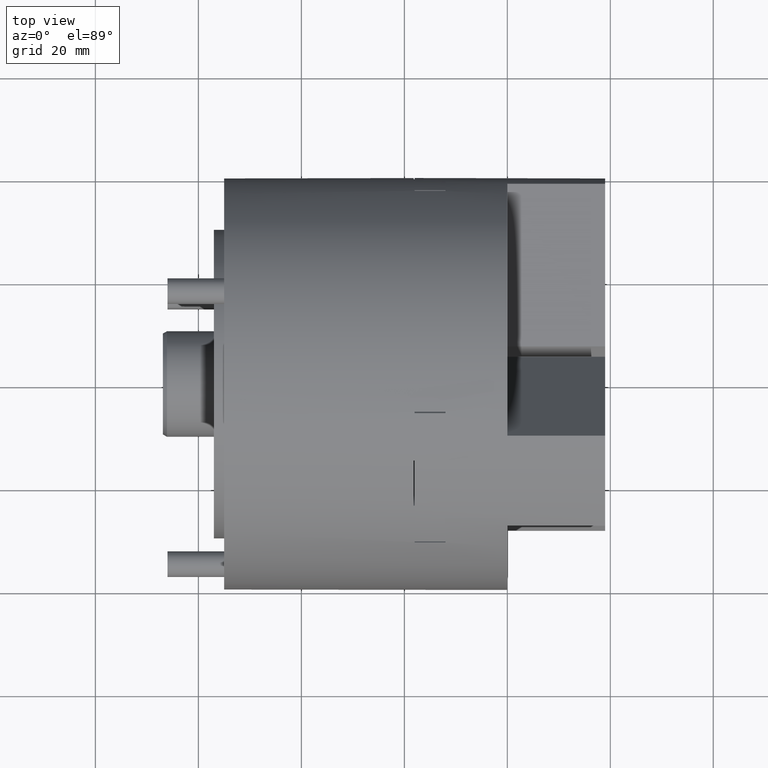
[diagram: clean part render]
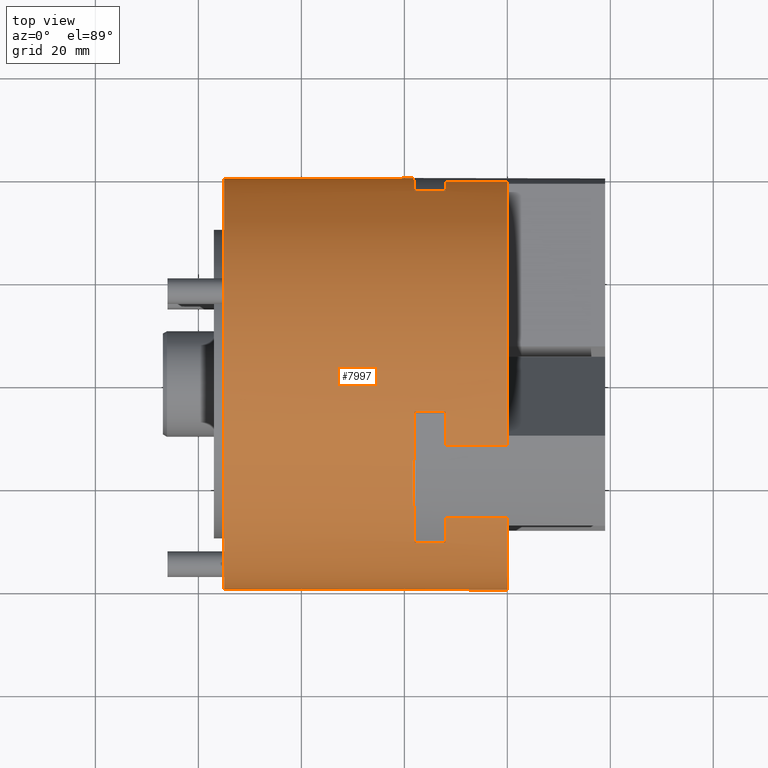
[diagram: same view with one face highlighted and labeled with its STEP entity id]
A machine part, top view. The second image highlights one B-rep face of the part: STEP entity #7997.
In plain terms, the highlighted cylindrical surface (bore or boss wall) has radius 40 mm, axis along (1, 0, 0).
Its self-contained STEP definition (entity closure, byte-faithful):
#135=CYLINDRICAL_SURFACE('',#8744,40.);
#243=CIRCLE('',#8248,40.);
#245=CIRCLE('',#8251,40.);
#372=CIRCLE('',#8612,40.);
#391=CIRCLE('',#8645,40.);
#393=CIRCLE('',#8650,40.);
#394=CIRCLE('',#8653,40.);
#395=CIRCLE('',#8655,40.);
#397=CIRCLE('',#8657,40.);
#398=CIRCLE('',#8660,40.);
#399=CIRCLE('',#8661,40.);
#401=CIRCLE('',#8665,40.);
#405=CIRCLE('',#8671,40.);
#406=CIRCLE('',#8672,40.);
#407=CIRCLE('',#8675,40.);
#408=CIRCLE('',#8678,40.);
#409=CIRCLE('',#8680,40.);
#410=CIRCLE('',#8683,40.);
#411=CIRCLE('',#8685,40.);
#412=CIRCLE('',#8686,40.);
#415=CIRCLE('',#8691,40.);
#416=CIRCLE('',#8692,40.);
#417=CIRCLE('',#8695,40.);
#420=CIRCLE('',#8700,40.);
#421=CIRCLE('',#8701,40.);
#424=CIRCLE('',#8705,40.);
#425=CIRCLE('',#8706,40.);
#426=CIRCLE('',#8709,40.);
#427=CIRCLE('',#8712,40.);
#434=CIRCLE('',#8723,40.);
#435=CIRCLE('',#8724,40.);
#436=CIRCLE('',#8725,40.);
#437=CIRCLE('',#8728,40.);
#438=CIRCLE('',#8729,40.);
#441=CIRCLE('',#8733,40.);
#442=CIRCLE('',#8734,40.);
#444=CIRCLE('',#8738,40.);
#445=CIRCLE('',#8742,40.);
#2054=ORIENTED_EDGE('',*,*,#3442,.F.);
#2055=ORIENTED_EDGE('',*,*,#3497,.F.);
#2056=ORIENTED_EDGE('',*,*,#3440,.F.);
#2057=ORIENTED_EDGE('',*,*,#3438,.T.);
#2058=ORIENTED_EDGE('',*,*,#3436,.T.);
#2059=ORIENTED_EDGE('',*,*,#3448,.T.);
#2060=ORIENTED_EDGE('',*,*,#3435,.T.);
#2061=ORIENTED_EDGE('',*,*,#3454,.T.);
#2062=ORIENTED_EDGE('',*,*,#3430,.T.);
#2063=ORIENTED_EDGE('',*,*,#3424,.T.);
#2064=ORIENTED_EDGE('',*,*,#3421,.T.);
#2065=ORIENTED_EDGE('',*,*,#3418,.T.);
#2066=ORIENTED_EDGE('',*,*,#3431,.T.);
#2067=ORIENTED_EDGE('',*,*,#3414,.T.);
#2068=ORIENTED_EDGE('',*,*,#3411,.T.);
#2069=ORIENTED_EDGE('',*,*,#3408,.T.);
#2070=ORIENTED_EDGE('',*,*,#3404,.F.);
#2071=ORIENTED_EDGE('',*,*,#3402,.F.);
#2072=ORIENTED_EDGE('',*,*,#3401,.F.);
#2073=ORIENTED_EDGE('',*,*,#3495,.F.);
#2074=ORIENTED_EDGE('',*,*,#2675,.F.);
#2075=ORIENTED_EDGE('',*,*,#3513,.T.);
#2076=ORIENTED_EDGE('',*,*,#3515,.T.);
#2077=ORIENTED_EDGE('',*,*,#3405,.T.);
#2078=ORIENTED_EDGE('',*,*,#3398,.T.);
#2079=ORIENTED_EDGE('',*,*,#3413,.T.);
#2080=ORIENTED_EDGE('',*,*,#3504,.T.);
#2081=ORIENTED_EDGE('',*,*,#3391,.T.);
#2082=ORIENTED_EDGE('',*,*,#3388,.T.);
#2083=ORIENTED_EDGE('',*,*,#3384,.T.);
#2084=ORIENTED_EDGE('',*,*,#3507,.T.);
#2085=ORIENTED_EDGE('',*,*,#3475,.T.);
#2086=ORIENTED_EDGE('',*,*,#3382,.T.);
#2087=ORIENTED_EDGE('',*,*,#3500,.T.);
#2088=ORIENTED_EDGE('',*,*,#3511,.F.);
#2089=ORIENTED_EDGE('',*,*,#3512,.T.);
#2090=ORIENTED_EDGE('',*,*,#2677,.F.);
#2091=ORIENTED_EDGE('',*,*,#3498,.F.);
#2092=ORIENTED_EDGE('',*,*,#3482,.F.);
#2093=ORIENTED_EDGE('',*,*,#3480,.T.);
#2094=ORIENTED_EDGE('',*,*,#3478,.T.);
#2095=ORIENTED_EDGE('',*,*,#3501,.T.);
#2096=ORIENTED_EDGE('',*,*,#3477,.T.);
#2097=ORIENTED_EDGE('',*,*,#3473,.T.);
#2098=ORIENTED_EDGE('',*,*,#3468,.T.);
#2099=ORIENTED_EDGE('',*,*,#3463,.T.);
#2100=ORIENTED_EDGE('',*,*,#3460,.T.);
#2101=ORIENTED_EDGE('',*,*,#3457,.T.);
#2102=ORIENTED_EDGE('',*,*,#3469,.T.);
#2103=ORIENTED_EDGE('',*,*,#3455,.T.);
#2104=ORIENTED_EDGE('',*,*,#3451,.T.);
#2105=ORIENTED_EDGE('',*,*,#3446,.T.);
#2106=ORIENTED_EDGE('',*,*,#3445,.T.);
#2107=ORIENTED_EDGE('',*,*,#3443,.T.);
#2108=ORIENTED_EDGE('',*,*,#3324,.T.);
#2675=EDGE_CURVE('',#3720,#3717,#243,.T.);
#2677=EDGE_CURVE('',#3707,#3721,#245,.T.);
#3324=EDGE_CURVE('',#4198,#4198,#372,.T.);
#3382=EDGE_CURVE('',#4240,#4243,#5024,.T.);
#3384=EDGE_CURVE('',#4245,#4244,#5026,.T.);
#3388=EDGE_CURVE('',#4248,#4245,#391,.T.);
#3391=EDGE_CURVE('',#4250,#4248,#5031,.T.);
#3398=EDGE_CURVE('',#4252,#4255,#5038,.T.);
#3401=EDGE_CURVE('',#4257,#4256,#393,.T.);
#3402=EDGE_CURVE('',#4256,#4258,#5041,.T.);
#3404=EDGE_CURVE('',#4258,#4141,#394,.T.);
#3405=EDGE_CURVE('',#4259,#4252,#395,.T.);
#3408=EDGE_CURVE('',#4260,#4141,#397,.T.);
#3411=EDGE_CURVE('',#4261,#4260,#5046,.T.);
#3413=EDGE_CURVE('',#4255,#4262,#398,.T.);
#3414=EDGE_CURVE('',#4142,#4261,#399,.T.);
#3418=EDGE_CURVE('',#4265,#4264,#5050,.T.);
#3421=EDGE_CURVE('',#4267,#4265,#401,.T.);
#3424=EDGE_CURVE('',#4269,#4267,#5054,.T.);
#3430=EDGE_CURVE('',#4162,#4269,#405,.T.);
#3431=EDGE_CURVE('',#4264,#4142,#406,.T.);
#3435=EDGE_CURVE('',#4272,#4275,#5061,.T.);
#3436=EDGE_CURVE('',#4276,#4165,#407,.T.);
#3438=EDGE_CURVE('',#4277,#4276,#5063,.T.);
#3440=EDGE_CURVE('',#4277,#4148,#408,.T.);
#3442=EDGE_CURVE('',#4153,#4278,#409,.T.);
#3443=EDGE_CURVE('',#4279,#4278,#5066,.T.);
#3445=EDGE_CURVE('',#4178,#4279,#410,.T.);
#3446=EDGE_CURVE('',#4280,#4178,#411,.T.);
#3448=EDGE_CURVE('',#4165,#4272,#412,.T.);
#3451=EDGE_CURVE('',#4281,#4280,#5070,.T.);
#3454=EDGE_CURVE('',#4275,#4162,#415,.T.);
#3455=EDGE_CURVE('',#4179,#4281,#416,.T.);
#3457=EDGE_CURVE('',#4284,#4283,#5073,.T.);
#3460=EDGE_CURVE('',#4286,#4284,#417,.T.);
#3463=EDGE_CURVE('',#4288,#4286,#5077,.T.);
#3468=EDGE_CURVE('',#4196,#4288,#420,.T.);
#3469=EDGE_CURVE('',#4283,#4179,#421,.T.);
#3473=EDGE_CURVE('',#4292,#4196,#424,.T.);
#3475=EDGE_CURVE('',#4291,#4240,#425,.T.);
#3477=EDGE_CURVE('',#4293,#4292,#5084,.T.);
#3478=EDGE_CURVE('',#4294,#4197,#426,.T.);
#3480=EDGE_CURVE('',#4295,#4294,#5086,.T.);
#3482=EDGE_CURVE('',#4295,#4296,#427,.T.);
#3495=EDGE_CURVE('',#3717,#4257,#434,.T.);
#3497=EDGE_CURVE('',#4148,#4153,#435,.T.);
#3498=EDGE_CURVE('',#4296,#3707,#436,.T.);
#3500=EDGE_CURVE('',#4243,#4305,#437,.T.);
#3501=EDGE_CURVE('',#4197,#4293,#438,.T.);
#3504=EDGE_CURVE('',#4262,#4250,#441,.T.);
#3507=EDGE_CURVE('',#4244,#4291,#442,.T.);
#3511=EDGE_CURVE('',#4307,#4305,#444,.T.);
#3512=EDGE_CURVE('',#4307,#3721,#5100,.T.);
#3513=EDGE_CURVE('',#3720,#4308,#5101,.T.);
#3515=EDGE_CURVE('',#4308,#4259,#445,.T.);
#3707=VERTEX_POINT('',#11437);
#3717=VERTEX_POINT('',#11460);
#3720=VERTEX_POINT('',#11468);
#3721=VERTEX_POINT('',#11473);
#4141=VERTEX_POINT('',#12759);
#4142=VERTEX_POINT('',#12762);
#4148=VERTEX_POINT('',#12776);
#4153=VERTEX_POINT('',#12787);
#4162=VERTEX_POINT('',#12810);
#4165=VERTEX_POINT('',#12816);
#4178=VERTEX_POINT('',#12858);
#4179=VERTEX_POINT('',#12861);
#4196=VERTEX_POINT('',#12910);
#4197=VERTEX_POINT('',#12913);
#4198=VERTEX_POINT('',#12917);
#4240=VERTEX_POINT('',#13038);
#4243=VERTEX_POINT('',#13043);
#4244=VERTEX_POINT('',#13047);
#4245=VERTEX_POINT('',#13049);
#4248=VERTEX_POINT('',#13057);
#4250=VERTEX_POINT('',#13063);
#4252=VERTEX_POINT('',#13070);
#4255=VERTEX_POINT('',#13075);
#4256=VERTEX_POINT('',#13079);
#4257=VERTEX_POINT('',#13081);
#4258=VERTEX_POINT('',#13085);
#4259=VERTEX_POINT('',#13091);
#4260=VERTEX_POINT('',#13095);
#4261=VERTEX_POINT('',#13099);
#4262=VERTEX_POINT('',#13103);
#4264=VERTEX_POINT('',#13111);
#4265=VERTEX_POINT('',#13113);
#4267=VERTEX_POINT('',#13119);
#4269=VERTEX_POINT('',#13125);
#4272=VERTEX_POINT('',#13138);
#4275=VERTEX_POINT('',#13143);
#4276=VERTEX_POINT('',#13147);
#4277=VERTEX_POINT('',#13151);
#4278=VERTEX_POINT('',#13157);
#4279=VERTEX_POINT('',#13161);
#4280=VERTEX_POINT('',#13167);
#4281=VERTEX_POINT('',#13173);
#4283=VERTEX_POINT('',#13183);
#4284=VERTEX_POINT('',#13185);
#4286=VERTEX_POINT('',#13191);
#4288=VERTEX_POINT('',#13197);
#4291=VERTEX_POINT('',#13210);
#4292=VERTEX_POINT('',#13213);
#4293=VERTEX_POINT('',#13218);
#4294=VERTEX_POINT('',#13222);
#4295=VERTEX_POINT('',#13226);
#4296=VERTEX_POINT('',#13230);
#4305=VERTEX_POINT('',#13262);
#4307=VERTEX_POINT('',#13278);
#4308=VERTEX_POINT('',#13284);
#5024=LINE('',#13044,#5720);
#5026=LINE('',#13048,#5722);
#5031=LINE('',#13062,#5727);
#5038=LINE('',#13076,#5734);
#5041=LINE('',#13084,#5737);
#5046=LINE('',#13100,#5742);
#5050=LINE('',#13112,#5746);
#5054=LINE('',#13124,#5750);
#5061=LINE('',#13144,#5757);
#5063=LINE('',#13150,#5759);
#5066=LINE('',#13160,#5762);
#5070=LINE('',#13174,#5766);
#5073=LINE('',#13184,#5769);
#5077=LINE('',#13196,#5773);
#5084=LINE('',#13219,#5780);
#5086=LINE('',#13225,#5782);
#5100=LINE('',#13281,#5796);
#5101=LINE('',#13283,#5797);
#5720=VECTOR('',#10424,1000.);
#5722=VECTOR('',#10428,1000.);
#5727=VECTOR('',#10441,1000.);
#5734=VECTOR('',#10450,1000.);
#5737=VECTOR('',#10459,1000.);
#5742=VECTOR('',#10478,1000.);
#5746=VECTOR('',#10492,1000.);
#5750=VECTOR('',#10504,1000.);
#5757=VECTOR('',#10523,1000.);
#5759=VECTOR('',#10531,1000.);
#5762=VECTOR('',#10544,1000.);
#5766=VECTOR('',#10562,1000.);
#5769=VECTOR('',#10575,1000.);
#5773=VECTOR('',#10587,1000.);
#5780=VECTOR('',#10614,1000.);
#5782=VECTOR('',#10622,1000.);
#5796=VECTOR('',#10694,1000.);
#5797=VECTOR('',#10697,1000.);
#6241=EDGE_LOOP('',(#2054,#2055,#2056,#2057,#2058,#2059,#2060,#2061,#2062,
#2063,#2064,#2065,#2066,#2067,#2068,#2069,#2070,#2071,#2072,#2073,#2074,
#2075,#2076,#2077,#2078,#2079,#2080,#2081,#2082,#2083,#2084,#2085,#2086,
#2087,#2088,#2089,#2090,#2091,#2092,#2093,#2094,#2095,#2096,#2097,#2098,
#2099,#2100,#2101,#2102,#2103,#2104,#2105,#2106,#2107));
#6242=EDGE_LOOP('',(#2108));
#6980=FACE_BOUND('',#6241,.T.);
#6981=FACE_BOUND('',#6242,.T.);
#7997=ADVANCED_FACE('',(#6980,#6981),#135,.T.);
#8248=AXIS2_PLACEMENT_3D('',#11469,#9101,#9102);
#8251=AXIS2_PLACEMENT_3D('',#11472,#9107,#9108);
#8612=AXIS2_PLACEMENT_3D('',#12916,#10326,#10327);
#8645=AXIS2_PLACEMENT_3D('',#13056,#10434,#10435);
#8650=AXIS2_PLACEMENT_3D('',#13082,#10455,#10456);
#8653=AXIS2_PLACEMENT_3D('',#13088,#10463,#10464);
#8655=AXIS2_PLACEMENT_3D('',#13090,#10467,#10468);
#8657=AXIS2_PLACEMENT_3D('',#13094,#10472,#10473);
#8660=AXIS2_PLACEMENT_3D('',#13104,#10482,#10483);
#8661=AXIS2_PLACEMENT_3D('',#13105,#10484,#10485);
#8665=AXIS2_PLACEMENT_3D('',#13118,#10497,#10498);
#8671=AXIS2_PLACEMENT_3D('',#13134,#10514,#10515);
#8672=AXIS2_PLACEMENT_3D('',#13135,#10516,#10517);
#8675=AXIS2_PLACEMENT_3D('',#13146,#10526,#10527);
#8678=AXIS2_PLACEMENT_3D('',#13154,#10535,#10536);
#8680=AXIS2_PLACEMENT_3D('',#13158,#10540,#10541);
#8683=AXIS2_PLACEMENT_3D('',#13164,#10548,#10549);
#8685=AXIS2_PLACEMENT_3D('',#13166,#10552,#10553);
#8686=AXIS2_PLACEMENT_3D('',#13169,#10555,#10556);
#8691=AXIS2_PLACEMENT_3D('',#13179,#10568,#10569);
#8692=AXIS2_PLACEMENT_3D('',#13180,#10570,#10571);
#8695=AXIS2_PLACEMENT_3D('',#13190,#10580,#10581);
#8700=AXIS2_PLACEMENT_3D('',#13205,#10595,#10596);
#8701=AXIS2_PLACEMENT_3D('',#13206,#10597,#10598);
#8705=AXIS2_PLACEMENT_3D('',#13212,#10606,#10607);
#8706=AXIS2_PLACEMENT_3D('',#13215,#10609,#10610);
#8709=AXIS2_PLACEMENT_3D('',#13221,#10617,#10618);
#8712=AXIS2_PLACEMENT_3D('',#13229,#10626,#10627);
#8723=AXIS2_PLACEMENT_3D('',#13255,#10654,#10655);
#8724=AXIS2_PLACEMENT_3D('',#13257,#10657,#10658);
#8725=AXIS2_PLACEMENT_3D('',#13258,#10659,#10660);
#8728=AXIS2_PLACEMENT_3D('',#13263,#10666,#10667);
#8729=AXIS2_PLACEMENT_3D('',#13264,#10668,#10669);
#8733=AXIS2_PLACEMENT_3D('',#13269,#10676,#10677);
#8734=AXIS2_PLACEMENT_3D('',#13272,#10680,#10681);
#8738=AXIS2_PLACEMENT_3D('',#13279,#10690,#10691);
#8742=AXIS2_PLACEMENT_3D('',#13287,#10701,#10702);
#8744=AXIS2_PLACEMENT_3D('',#13290,#10706,#10707);
#9101=DIRECTION('',(1.,0.,0.));
#9102=DIRECTION('',(0.,0.,-1.));
#9107=DIRECTION('',(1.,0.,0.));
#9108=DIRECTION('',(0.,0.,-1.));
#10326=DIRECTION('',(1.,0.,0.));
#10327=DIRECTION('',(0.,0.,-1.));
#10424=DIRECTION('',(1.,0.,0.));
#10428=DIRECTION('',(1.,0.,0.));
#10434=DIRECTION('',(-1.,0.,0.));
#10435=DIRECTION('',(0.,0.,-1.));
#10441=DIRECTION('',(-1.,0.,0.));
#10450=DIRECTION('',(-1.,0.,0.));
#10455=DIRECTION('',(1.,8.32667268468866E-17,4.0773630420284E-16));
#10456=DIRECTION('',(4.0773630420284E-16,0.,-1.));
#10459=DIRECTION('',(-1.,0.,0.));
#10463=DIRECTION('',(-1.,-1.2490009027033E-16,1.4043631420583E-16));
#10464=DIRECTION('',(1.30104260698261E-16,0.,1.));
#10467=DIRECTION('',(1.,-2.31125322882639E-16,1.33440267382832E-16));
#10468=DIRECTION('',(-2.16840434497101E-16,-1.,0.));
#10472=DIRECTION('',(1.,0.,0.));
#10473=DIRECTION('',(0.,-2.87769807982841E-13,1.));
#10478=DIRECTION('',(1.,0.,0.));
#10482=DIRECTION('',(-1.,0.,0.));
#10483=DIRECTION('',(0.,0.,-1.));
#10484=DIRECTION('',(-1.,0.,0.));
#10485=DIRECTION('',(0.,-3.36619621066347E-13,-1.));
#10492=DIRECTION('',(1.,0.,0.));
#10497=DIRECTION('',(-1.,0.,0.));
#10498=DIRECTION('',(0.,0.,-1.));
#10504=DIRECTION('',(-1.,0.,0.));
#10514=DIRECTION('',(-1.,-1.2490009027033E-16,1.65843612768595E-18));
#10515=DIRECTION('',(8.67361737988404E-17,-1.,0.));
#10516=DIRECTION('',(-1.,-1.2490009027033E-16,1.65843612768595E-18));
#10517=DIRECTION('',(8.67361737988404E-17,-1.,0.));
#10523=DIRECTION('',(-1.,0.,0.));
#10526=DIRECTION('',(1.,1.2490009027033E-16,1.37119441950459E-16));
#10527=DIRECTION('',(1.30104260698261E-16,0.,-1.));
#10531=DIRECTION('',(-1.,0.,0.));
#10535=DIRECTION('',(1.,0.,0.));
#10536=DIRECTION('',(0.,0.,-1.));
#10540=DIRECTION('',(1.,0.,0.));
#10541=DIRECTION('',(0.,0.,-1.));
#10544=DIRECTION('',(1.,0.,0.));
#10548=DIRECTION('',(1.,0.,0.));
#10549=DIRECTION('',(0.,0.,1.));
#10552=DIRECTION('',(1.,0.,0.));
#10553=DIRECTION('',(0.,-8.88178419700125E-16,1.));
#10555=DIRECTION('',(1.,0.,-2.66880534765662E-16));
#10556=DIRECTION('',(2.60208521396521E-16,0.,1.));
#10562=DIRECTION('',(1.,0.,0.));
#10568=DIRECTION('',(-1.,0.,0.));
#10569=DIRECTION('',(0.,0.,-1.));
#10570=DIRECTION('',(-1.,0.,0.));
#10571=DIRECTION('',(0.,0.,-1.));
#10575=DIRECTION('',(1.,0.,0.));
#10580=DIRECTION('',(-1.,0.,0.));
#10581=DIRECTION('',(0.,0.,-1.));
#10587=DIRECTION('',(-1.,0.,0.));
#10595=DIRECTION('',(-1.,6.10137973180356E-17,-1.08995869172918E-16));
#10596=DIRECTION('',(-8.67361737988404E-17,0.,1.));
#10597=DIRECTION('',(-1.,0.,0.));
#10598=DIRECTION('',(0.,0.,-1.));
#10606=DIRECTION('',(-1.,0.,0.));
#10607=DIRECTION('',(0.,0.,-1.));
#10609=DIRECTION('',(-1.,0.,0.));
#10610=DIRECTION('',(0.,0.,-1.));
#10614=DIRECTION('',(-1.,0.,0.));
#10617=DIRECTION('',(1.,-1.81198965217008E-16,3.96069301338454E-17));
#10618=DIRECTION('',(1.73472347597681E-16,1.,0.));
#10622=DIRECTION('',(-1.,0.,0.));
#10626=DIRECTION('',(1.,-3.94743360908282E-16,-1.31757051362039E-16));
#10627=DIRECTION('',(3.94743360908282E-16,1.,0.));
#10654=DIRECTION('',(1.,0.,0.));
#10655=DIRECTION('',(0.,0.,-1.));
#10657=DIRECTION('',(1.,0.,0.));
#10658=DIRECTION('',(0.,0.,-1.));
#10659=DIRECTION('',(1.,0.,0.));
#10660=DIRECTION('',(0.,0.,-1.));
#10666=DIRECTION('',(1.,0.,0.));
#10667=DIRECTION('',(0.,0.,1.));
#10668=DIRECTION('',(1.,0.,0.));
#10669=DIRECTION('',(0.,0.,1.));
#10676=DIRECTION('',(-1.,6.3886292952294E-17,1.07337433045233E-16));
#10677=DIRECTION('',(8.67361737988404E-17,0.,1.));
#10680=DIRECTION('',(-1.,6.3886292952294E-17,1.07337433045233E-16));
#10681=DIRECTION('',(8.67361737988404E-17,0.,1.));
#10690=DIRECTION('',(-1.,1.84071460851267E-16,3.79484940061619E-17));
#10691=DIRECTION('',(-1.73472347597681E-16,-1.,0.));
#10694=DIRECTION('',(1.,0.,0.));
#10697=DIRECTION('',(-1.,0.,0.));
#10701=DIRECTION('',(1.,5.62988749466794E-17,-1.76726372084304E-16));
#10702=DIRECTION('',(-1.73472347597681E-16,0.,-1.));
#10706=DIRECTION('',(1.,0.,0.));
#10707=DIRECTION('',(0.,0.,-1.));
#11437=CARTESIAN_POINT('',(-3.22490646371195E-15,-28.0251707688812,-28.5410196624971));
#11460=CARTESIAN_POINT('',(-3.22490646371194E-15,-10.7046626931923,-38.5410196624969));
#11468=CARTESIAN_POINT('',(1.19013855373255E-15,-12.6677147119897,-37.9411254969544));
#11469=CARTESIAN_POINT('',(0.,0.,0.));
#11472=CARTESIAN_POINT('',(0.,0.,0.));
#11473=CARTESIAN_POINT('',(1.19013855373256E-15,-26.5241211725408,-29.9411254969543));
#12759=CARTESIAN_POINT('',(-12.,37.3756270850403,-14.25));
#12762=CARTESIAN_POINT('',(-18.,37.3756270850403,-14.25));
#12776=CARTESIAN_POINT('',(-3.22490646371194E-15,38.7298334620742,10.));
#12787=CARTESIAN_POINT('',(-3.22490646371194E-15,-10.7046626931929,38.5410196624968));
#12810=CARTESIAN_POINT('',(-18.,37.3756270850403,14.25));
#12816=CARTESIAN_POINT('',(-12.,37.3756270850403,14.25));
#12858=CARTESIAN_POINT('',(-12.,-6.34695153859209,39.4932425380186));
#12861=CARTESIAN_POINT('',(-18.,-6.34695153859209,39.4932425380186));
#12910=CARTESIAN_POINT('',(-18.,-31.0286755464485,25.2432425380185));
#12913=CARTESIAN_POINT('',(-12.,-31.0286755464485,25.2432425380185));
#12916=CARTESIAN_POINT('',(-55.,0.,0.));
#12917=CARTESIAN_POINT('',(-55.,0.,-40.));
#13038=CARTESIAN_POINT('',(-18.,-31.1970437812332,-25.0348648750462));
#13043=CARTESIAN_POINT('',(-12.,-31.1970437812332,-25.0348648750462));
#13044=CARTESIAN_POINT('',(70.49,-31.1970437812332,-25.0348648750462));
#13047=CARTESIAN_POINT('',(-18.,-24.1732618519068,-31.8693177121687));
#13048=CARTESIAN_POINT('',(70.49,-24.1732618519071,-31.8693177121684));
#13049=CARTESIAN_POINT('',(-18.2,-24.1732618519068,-31.8693177121687));
#13056=CARTESIAN_POINT('',(-18.2,0.,0.));
#13057=CARTESIAN_POINT('',(-18.2,-15.5130078140624,-36.8693177121687));
#13062=CARTESIAN_POINT('',(70.49,-15.513007814062,-36.8693177121689));
#13063=CARTESIAN_POINT('',(-18.,-15.5130078140624,-36.8693177121687));
#13070=CARTESIAN_POINT('',(-12.,-6.0823070714845,-39.5348648750463));
#13075=CARTESIAN_POINT('',(-18.,-6.08230707148449,-39.5348648750463));
#13076=CARTESIAN_POINT('',(70.49,-6.08230707148442,-39.5348648750463));
#13079=CARTESIAN_POINT('',(1.04415019390747E-14,39.1918358845308,-8.));
#13081=CARTESIAN_POINT('',(5.59741603315434E-15,38.7298334620742,-9.99999999999998));
#13082=CARTESIAN_POINT('',(1.38777878078145E-14,0.,0.));
#13084=CARTESIAN_POINT('',(70.49,39.1918358845308,-8.00000000000002));
#13085=CARTESIAN_POINT('',(-12.,39.1918358845308,-8.));
#13088=CARTESIAN_POINT('',(-12.,0.,0.));
#13090=CARTESIAN_POINT('',(-12.,0.,0.));
#13091=CARTESIAN_POINT('',(-12.,-6.34695153859155,-39.4932425380187));
#13094=CARTESIAN_POINT('',(-12.,0.,0.));
#13095=CARTESIAN_POINT('',(-12.,37.2793508527174,-14.5));
#13099=CARTESIAN_POINT('',(-18.,37.2793508527174,-14.5));
#13100=CARTESIAN_POINT('',(70.49,37.2793508527174,-14.5));
#13103=CARTESIAN_POINT('',(-18.,-6.34695153859154,-39.4932425380187));
#13104=CARTESIAN_POINT('',(-18.,0.,0.));
#13105=CARTESIAN_POINT('',(-18.,0.,0.));
#13111=CARTESIAN_POINT('',(-18.,39.6862696659689,-5.));
#13112=CARTESIAN_POINT('',(70.49,39.6862696659688,-5.00000000000038));
#13113=CARTESIAN_POINT('',(-18.2,39.6862696659689,-5.));
#13118=CARTESIAN_POINT('',(-18.2,0.,0.));
#13119=CARTESIAN_POINT('',(-18.2,39.6862696659688,5.));
#13124=CARTESIAN_POINT('',(70.49,39.6862696659688,5.00000000000039));
#13125=CARTESIAN_POINT('',(-18.,39.6862696659689,5.));
#13134=CARTESIAN_POINT('',(-18.,0.,0.));
#13135=CARTESIAN_POINT('',(-18.,0.,0.));
#13138=CARTESIAN_POINT('',(-12.,37.2793508527174,14.5));
#13143=CARTESIAN_POINT('',(-18.,37.2793508527173,14.5));
#13144=CARTESIAN_POINT('',(70.49,37.2793508527173,14.5000000000001));
#13146=CARTESIAN_POINT('',(-12.,0.,0.));
#13147=CARTESIAN_POINT('',(-12.,39.1918358845308,8.));
#13150=CARTESIAN_POINT('',(70.49,39.1918358845308,8.00000000000001));
#13151=CARTESIAN_POINT('',(-3.26337589322524E-15,39.1918358845308,8.));
#13154=CARTESIAN_POINT('',(0.,0.,0.));
#13157=CARTESIAN_POINT('',(4.41843021199712E-15,-12.6677147119899,37.9411254969542));
#13158=CARTESIAN_POINT('',(0.,0.,0.));
#13160=CARTESIAN_POINT('',(70.49,-12.6677147119895,37.9411254969544));
#13161=CARTESIAN_POINT('',(-12.,-12.6677147119899,37.9411254969542));
#13164=CARTESIAN_POINT('',(-12.,0.,0.));
#13166=CARTESIAN_POINT('',(-12.,0.,0.));
#13167=CARTESIAN_POINT('',(-12.,-6.08230707148396,39.5348648750464));
#13169=CARTESIAN_POINT('',(-12.,0.,0.));
#13173=CARTESIAN_POINT('',(-18.,-6.08230707148396,39.5348648750464));
#13174=CARTESIAN_POINT('',(70.49,-6.08230707148396,39.5348648750464));
#13179=CARTESIAN_POINT('',(-18.,0.,0.));
#13180=CARTESIAN_POINT('',(-18.,0.,0.));
#13183=CARTESIAN_POINT('',(-18.,-15.5130078140619,36.8693177121689));
#13184=CARTESIAN_POINT('',(70.49,-15.5130078140615,36.8693177121691));
#13185=CARTESIAN_POINT('',(-18.2,-15.5130078140619,36.8693177121689));
#13190=CARTESIAN_POINT('',(-18.2,0.,0.));
#13191=CARTESIAN_POINT('',(-18.2,-24.1732618519063,31.869317712169));
#13196=CARTESIAN_POINT('',(70.49,-24.1732618519066,31.8693177121688));
#13197=CARTESIAN_POINT('',(-18.,-24.1732618519063,31.869317712169));
#13205=CARTESIAN_POINT('',(-18.,0.,0.));
#13206=CARTESIAN_POINT('',(-18.,0.,0.));
#13210=CARTESIAN_POINT('',(-18.,-31.0286755464482,-25.2432425380189));
#13212=CARTESIAN_POINT('',(-18.,0.,0.));
#13213=CARTESIAN_POINT('',(-18.,-31.1970437812328,25.0348648750466));
#13215=CARTESIAN_POINT('',(-18.,0.,0.));
#13218=CARTESIAN_POINT('',(-12.,-31.1970437812328,25.0348648750466));
#13219=CARTESIAN_POINT('',(70.49,-31.1970437812329,25.0348648750465));
#13221=CARTESIAN_POINT('',(-12.,0.,0.));
#13222=CARTESIAN_POINT('',(-12.,-26.5241211725409,29.9411254969543));
#13225=CARTESIAN_POINT('',(70.49,-26.5241211725407,29.9411254969545));
#13226=CARTESIAN_POINT('',(3.67626074048325E-15,-26.5241211725409,29.9411254969543));
#13229=CARTESIAN_POINT('',(1.38777878078145E-14,0.,0.));
#13230=CARTESIAN_POINT('',(4.62113287044529E-15,-28.0251707688816,28.5410196624967));
#13255=CARTESIAN_POINT('',(0.,0.,0.));
#13257=CARTESIAN_POINT('',(0.,0.,0.));
#13258=CARTESIAN_POINT('',(0.,0.,0.));
#13262=CARTESIAN_POINT('',(-12.,-31.0286755464482,-25.2432425380189));
#13263=CARTESIAN_POINT('',(-12.,0.,0.));
#13264=CARTESIAN_POINT('',(-12.,0.,0.));
#13269=CARTESIAN_POINT('',(-18.,0.,0.));
#13272=CARTESIAN_POINT('',(-18.,0.,0.));
#13278=CARTESIAN_POINT('',(-12.,-26.5241211725408,-29.9411254969544));
#13279=CARTESIAN_POINT('',(-12.,0.,0.));
#13281=CARTESIAN_POINT('',(70.49,-26.5241211725411,-29.9411254969541));
#13283=CARTESIAN_POINT('',(70.49,-12.66771471199,-37.9411254969542));
#13284=CARTESIAN_POINT('',(-12.,-12.6677147119897,-37.9411254969544));
#13287=CARTESIAN_POINT('',(-12.,0.,0.));
#13290=CARTESIAN_POINT('',(70.49,0.,0.));